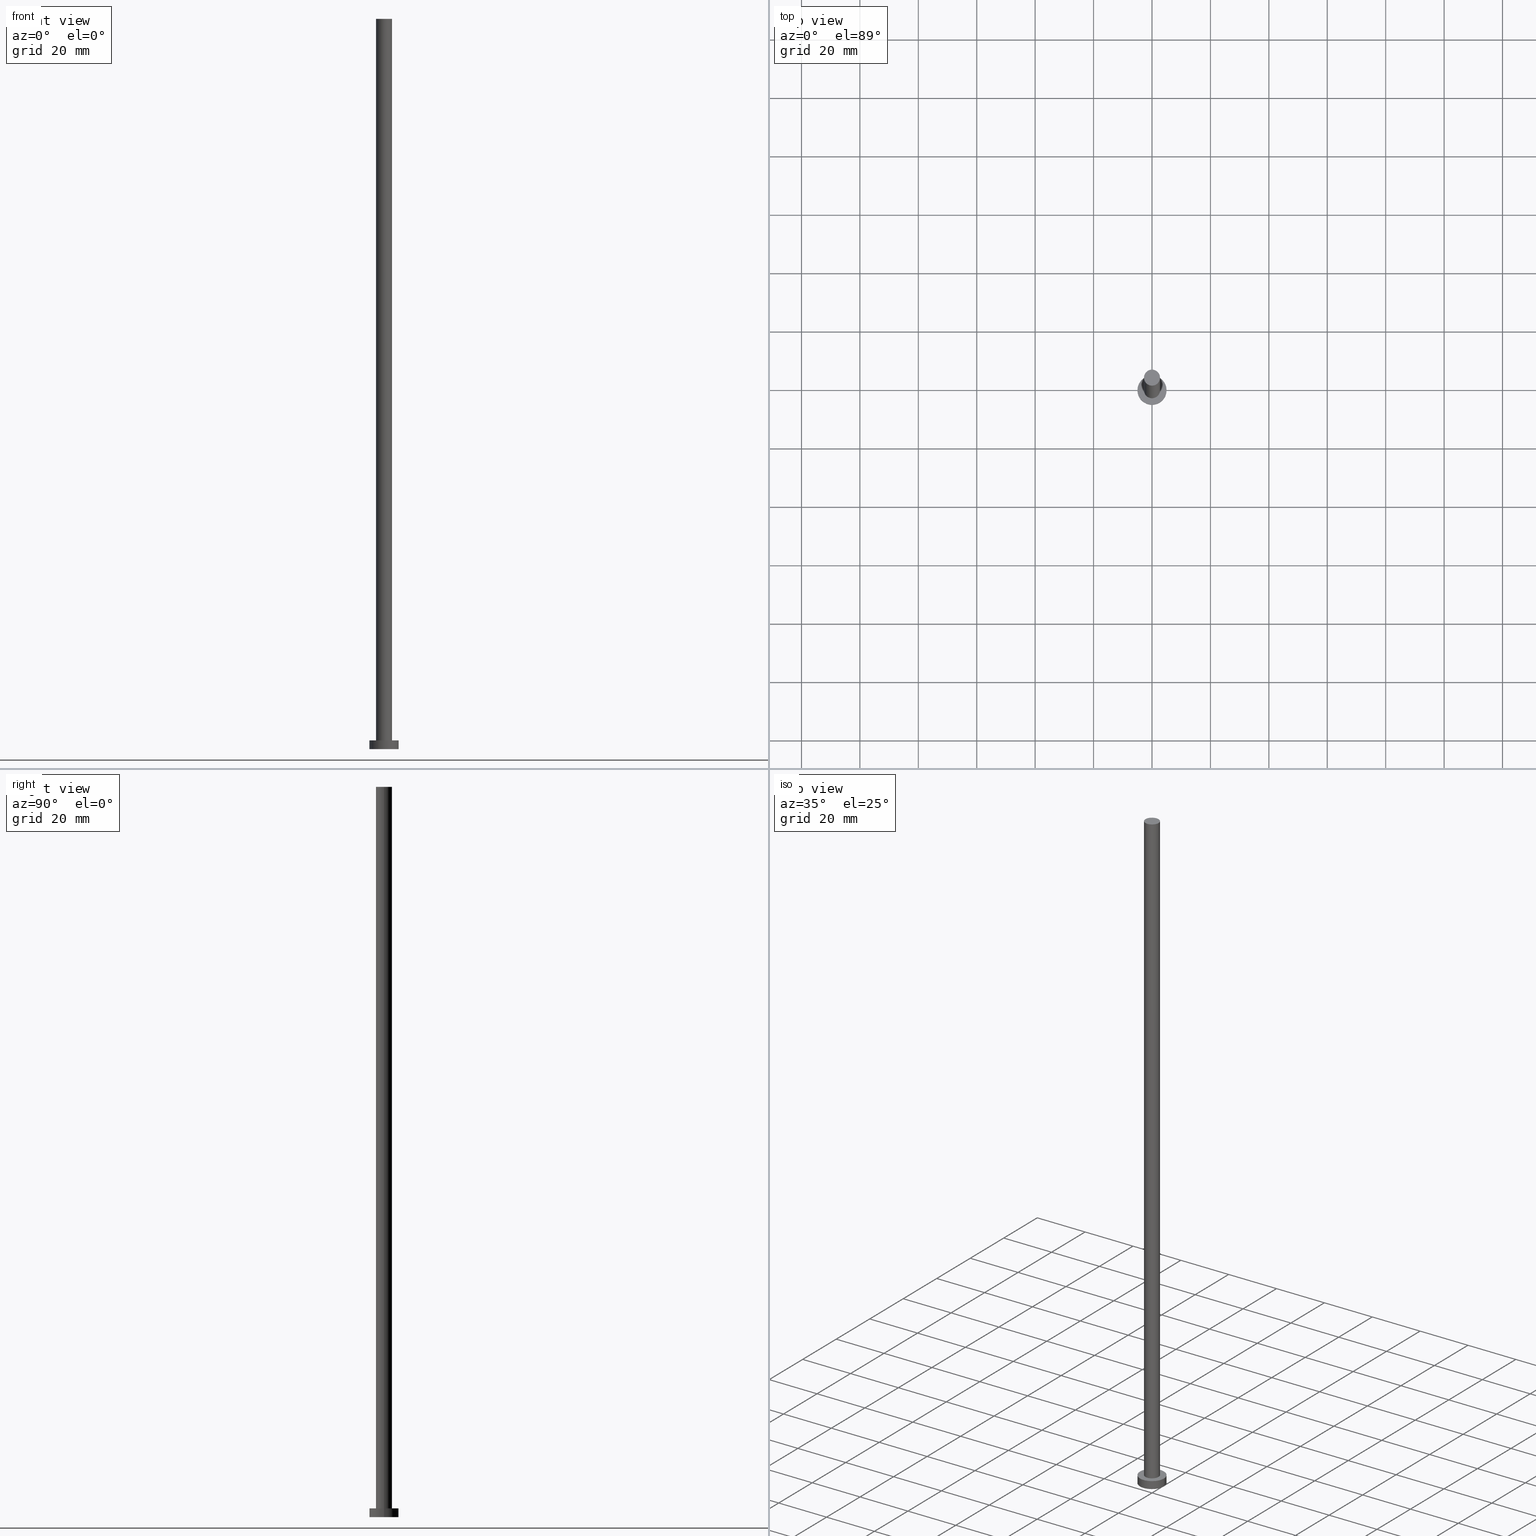
[diagram: canonical four-view strip — front | top / right | iso, engineering-drawing reading convention]
A machine part, canonical four-view strip (front | top / right | iso — engineering-drawing reading convention). The complete STEP part file that produces these views, byte-faithful:
ISO-10303-21;
HEADER;
FILE_DESCRIPTION (( 'STEP AP203' ),
    '1' );
FILE_NAME ('b4a0.STEP',
    '2023-02-13T14:33:39',
    ( '' ),
    ( '' ),
    'SwSTEP 2.0',
    'SolidWorks 2019',
    '' );
FILE_SCHEMA (( 'CONFIG_CONTROL_DESIGN' ));
ENDSEC;

DATA;
#1 = AXIS2_PLACEMENT_3D ( 'NONE', #87, #66, #124 ) ;
#2 = PRODUCT_DEFINITION_SHAPE ( 'NONE', 'NONE',  #73 ) ;
#3 = ADVANCED_FACE ( 'NONE', ( #222 ), #41, .T. ) ;
#4 = ORIENTED_EDGE ( 'NONE', *, *, #113, .T. ) ;
#5 = ORIENTED_EDGE ( 'NONE', *, *, #44, .F. ) ;
#6 = DIRECTION ( 'NONE',  ( -0.000000000000000000, -0.000000000000000000, -1.000000000000000000 ) ) ;
#7 = CARTESIAN_POINT ( 'NONE',  ( 2.750000000000000000, 3.367778697655221012E-16, 250.0000000000000000 ) ) ;
#8 = EDGE_LOOP ( 'NONE', ( #107, #5 ) ) ;
#9 = PERSON_AND_ORGANIZATION_ROLE ( 'creator' ) ;
#10 = DIRECTION ( 'NONE',  ( 0.000000000000000000, 0.000000000000000000, 1.000000000000000000 ) ) ;
#11 = APPROVAL ( #32, 'NEUR�EN�' ) ;
#12 = PERSON_AND_ORGANIZATION_ROLE ( 'design_supplier' ) ;
#13 = CC_DESIGN_APPROVAL ( #160, ( #73 ) ) ;
#14 = DATE_AND_TIME ( #36, #119 ) ;
#15 = AXIS2_PLACEMENT_3D ( 'NONE', #101, #205, #28 ) ;
#16 = APPROVAL_PERSON_ORGANIZATION ( #239, #238, #94 ) ;
#17 = CIRCLE ( 'NONE', #15, 5.000000000000000000 ) ;
#18 = CC_DESIGN_DATE_AND_TIME_ASSIGNMENT ( #14, #49, ( #68 ) ) ;
#19 = AXIS2_PLACEMENT_3D ( 'NONE', #115, #157, #178 ) ;
#20 = DIRECTION ( 'NONE',  ( 0.000000000000000000, 0.000000000000000000, 1.000000000000000000 ) ) ;
#21 = ORIENTED_EDGE ( 'NONE', *, *, #235, .T. ) ;
#22 = EDGE_CURVE ( 'NONE', #111, #88, #135, .T. ) ;
#23 = CYLINDRICAL_SURFACE ( 'NONE', #192, 2.750000000000000000 ) ;
#24 = FACE_BOUND ( 'NONE', #91, .T. ) ;
#25 = VECTOR ( 'NONE', #86, 1000.000000000000000 ) ;
#26 = EDGE_LOOP ( 'NONE', ( #4, #202 ) ) ;
#27 = PERSON_AND_ORGANIZATION_ROLE ( 'design_owner' ) ;
#28 = DIRECTION ( 'NONE',  ( 1.000000000000000000, 0.000000000000000000, 0.000000000000000000 ) ) ;
#29 = DIRECTION ( 'NONE',  ( 0.000000000000000000, 0.000000000000000000, 1.000000000000000000 ) ) ;
#30 = AXIS2_PLACEMENT_3D ( 'NONE', #151, #92, #240 ) ;
#31 = CC_DESIGN_SECURITY_CLASSIFICATION ( #68, ( #142 ) ) ;
#32 = APPROVAL_STATUS ( 'not_yet_approved' ) ;
#33 = PLANE ( 'NONE',  #181 ) ;
#34 = COORDINATED_UNIVERSAL_TIME_OFFSET ( 1, 0, .AHEAD. ) ;
#35 = DIRECTION ( 'NONE',  ( 1.000000000000000000, 0.000000000000000000, 0.000000000000000000 ) ) ;
#36 = CALENDAR_DATE ( 2023, 13, 2 ) ;
#37 = AXIS2_PLACEMENT_3D ( 'NONE', #129, #6, #230 ) ;
#38 = CARTESIAN_POINT ( 'NONE',  ( 5.000000000000000000, 6.123233995736766282E-16, 3.000000000000000000 ) ) ;
#39 = FACE_OUTER_BOUND ( 'NONE', #8, .T. ) ;
#40 = AXIS2_PLACEMENT_3D ( 'NONE', #80, #158, #35 ) ;
#41 = CYLINDRICAL_SURFACE ( 'NONE', #45, 2.750000000000000000 ) ;
#42 = FACE_OUTER_BOUND ( 'NONE', #46, .T. ) ;
#43 = CARTESIAN_POINT ( 'NONE',  ( 5.000000000000000000, 6.123233995736766282E-16, 0.000000000000000000 ) ) ;
#44 = EDGE_CURVE ( 'NONE', #170, #208, #17, .T. ) ;
#45 = AXIS2_PLACEMENT_3D ( 'NONE', #131, #209, #165 ) ;
#46 = EDGE_LOOP ( 'NONE', ( #184, #103, #64, #166 ) ) ;
#47 = CARTESIAN_POINT ( 'NONE',  ( 2.750000000000000000, 3.367778697655221012E-16, 250.0000000000000000 ) ) ;
#48 = ORIENTED_EDGE ( 'NONE', *, *, #130, .F. ) ;
#49 = DATE_TIME_ROLE ( 'classification_date' ) ;
#50 = CIRCLE ( 'NONE', #152, 2.750000000000000000 ) ;
#51 = SHAPE_DEFINITION_REPRESENTATION ( #2, #132 ) ;
#52 = FACE_OUTER_BOUND ( 'NONE', #26, .T. ) ;
#53 = DATE_AND_TIME ( #218, #84 ) ;
#54 = DIRECTION ( 'NONE',  ( -1.000000000000000000, 0.000000000000000000, 0.000000000000000000 ) ) ;
#55 = CIRCLE ( 'NONE', #229, 5.000000000000000000 ) ;
#56 = ADVANCED_FACE ( 'NONE', ( #164 ), #109, .T. ) ;
#57 = CC_DESIGN_APPROVAL ( #238, ( #68 ) ) ;
#58 =( LENGTH_UNIT ( ) NAMED_UNIT ( * ) SI_UNIT ( .MILLI., .METRE. ) );
#59 = LINE ( 'NONE', #217, #182 ) ;
#60 = EDGE_LOOP ( 'NONE', ( #150, #245, #21, #201 ) ) ;
#61 = APPROVAL_STATUS ( 'not_yet_approved' ) ;
#62 = LINE ( 'NONE', #7, #203 ) ;
#63 = CC_DESIGN_DATE_AND_TIME_ASSIGNMENT ( #196, #211, ( #73 ) ) ;
#64 = ORIENTED_EDGE ( 'NONE', *, *, #130, .T. ) ;
#65 = CARTESIAN_POINT ( 'NONE',  ( 0.000000000000000000, 0.000000000000000000, 3.000000000000000000 ) ) ;
#66 = DIRECTION ( 'NONE',  ( 0.000000000000000000, 0.000000000000000000, 1.000000000000000000 ) ) ;
#67 = VERTEX_POINT ( 'NONE', #47 ) ;
#68 = SECURITY_CLASSIFICATION ( '', '', #74 ) ;
#69 = COORDINATED_UNIVERSAL_TIME_OFFSET ( 1, 0, .AHEAD. ) ;
#70 = EDGE_LOOP ( 'NONE', ( #85, #144, #186, #180 ) ) ;
#71 = CARTESIAN_POINT ( 'NONE',  ( -2.750000000000000000, 0.000000000000000000, 250.0000000000000000 ) ) ;
#72 = CIRCLE ( 'NONE', #102, 5.000000000000000000 ) ;
#73 = PRODUCT_DEFINITION ( 'NEZN�M�', '', #142, #162 ) ;
#74 = SECURITY_CLASSIFICATION_LEVEL ( 'unclassified' ) ;
#75 = DIRECTION ( 'NONE',  ( 1.000000000000000000, 0.000000000000000000, -0.000000000000000000 ) ) ;
#76 = DIRECTION ( 'NONE',  ( 0.000000000000000000, 0.000000000000000000, 1.000000000000000000 ) ) ;
#77 = CC_DESIGN_PERSON_AND_ORGANIZATION_ASSIGNMENT ( #156, #233, ( #68 ) ) ;
#78 = EDGE_CURVE ( 'NONE', #67, #111, #62, .T. ) ;
#79 = PLANE ( 'NONE',  #221 ) ;
#80 = CARTESIAN_POINT ( 'NONE',  ( 0.000000000000000000, 0.000000000000000000, 3.000000000000000000 ) ) ;
#81 = APPROVAL_PERSON_ORGANIZATION ( #248, #11, #255 ) ;
#82 = ADVANCED_FACE ( 'NONE', ( #42 ), #23, .T. ) ;
#83 = ORIENTED_EDGE ( 'NONE', *, *, #242, .F. ) ;
#84 = LOCAL_TIME ( 15, 33, 39.00000000000000000, #34 ) ;
#85 = ORIENTED_EDGE ( 'NONE', *, *, #128, .F. ) ;
#86 = DIRECTION ( 'NONE',  ( -0.000000000000000000, -0.000000000000000000, -1.000000000000000000 ) ) ;
#87 = CARTESIAN_POINT ( 'NONE',  ( 0.000000000000000000, 0.000000000000000000, 0.000000000000000000 ) ) ;
#88 = VERTEX_POINT ( 'NONE', #177 ) ;
#89 = APPROVAL_ROLE ( '' ) ;
#90 = VERTEX_POINT ( 'NONE', #254 ) ;
#91 = EDGE_LOOP ( 'NONE', ( #83, #246 ) ) ;
#92 = DIRECTION ( 'NONE',  ( -0.000000000000000000, -0.000000000000000000, -1.000000000000000000 ) ) ;
#93 = VECTOR ( 'NONE', #153, 1000.000000000000000 ) ;
#94 = APPROVAL_ROLE ( '' ) ;
#95 = CYLINDRICAL_SURFACE ( 'NONE', #30, 5.000000000000000000 ) ;
#96 = DIRECTION ( 'NONE',  ( 0.000000000000000000, 0.000000000000000000, 1.000000000000000000 ) ) ;
#97 =( NAMED_UNIT ( * ) PLANE_ANGLE_UNIT ( ) SI_UNIT ( $, .RADIAN. ) );
#98 = CIRCLE ( 'NONE', #40, 2.750000000000000000 ) ;
#99 = APPROVAL_PERSON_ORGANIZATION ( #231, #160, #89 ) ;
#100 = ADVANCED_FACE ( 'NONE', ( #133 ), #95, .T. ) ;
#101 = CARTESIAN_POINT ( 'NONE',  ( 0.000000000000000000, 0.000000000000000000, 0.000000000000000000 ) ) ;
#102 = AXIS2_PLACEMENT_3D ( 'NONE', #247, #234, #112 ) ;
#103 = ORIENTED_EDGE ( 'NONE', *, *, #113, .F. ) ;
#104 = LOCAL_TIME ( 15, 33, 39.00000000000000000, #195 ) ;
#105 = APPLICATION_CONTEXT ( 'configuration controlled 3d designs of mechanical parts and assemblies' ) ;
#106 = FACE_OUTER_BOUND ( 'NONE', #227, .T. ) ;
#107 = ORIENTED_EDGE ( 'NONE', *, *, #138, .F. ) ;
#108 = APPLICATION_PROTOCOL_DEFINITION ( 'international standard', 'config_control_design', 1994, #213 ) ;
#109 = CYLINDRICAL_SURFACE ( 'NONE', #37, 5.000000000000000000 ) ;
#110 = MECHANICAL_CONTEXT ( 'NONE', #105, 'mechanical' ) ;
#111 = VERTEX_POINT ( 'NONE', #212 ) ;
#112 = DIRECTION ( 'NONE',  ( 1.000000000000000000, 0.000000000000000000, 0.000000000000000000 ) ) ;
#113 = EDGE_CURVE ( 'NONE', #188, #67, #50, .T. ) ;
#114 = CC_DESIGN_PERSON_AND_ORGANIZATION_ASSIGNMENT ( #154, #9, ( #73 ) ) ;
#115 = CARTESIAN_POINT ( 'NONE',  ( 0.000000000000000000, 0.000000000000000000, 3.000000000000000000 ) ) ;
#116 = CC_DESIGN_PERSON_AND_ORGANIZATION_ASSIGNMENT ( #136, #12, ( #142 ) ) ;
#117 = DIRECTION ( 'NONE',  ( 0.000000000000000000, 0.000000000000000000, 1.000000000000000000 ) ) ;
#118 = CARTESIAN_POINT ( 'NONE',  ( -2.750000000000000000, 0.000000000000000000, 250.0000000000000000 ) ) ;
#119 = LOCAL_TIME ( 15, 33, 39.00000000000000000, #250 ) ;
#120 = DIRECTION ( 'NONE',  ( 1.000000000000000000, 0.000000000000000000, 0.000000000000000000 ) ) ;
#121 = ADVANCED_FACE ( 'NONE', ( #52 ), #33, .T. ) ;
#122 = CARTESIAN_POINT ( 'NONE',  ( 0.000000000000000000, 0.000000000000000000, 3.000000000000000000 ) ) ;
#123 = UNCERTAINTY_MEASURE_WITH_UNIT (LENGTH_MEASURE( 1.000000000000000082E-05 ), #58, 'distance_accuracy_value', 'NONE');
#124 = DIRECTION ( 'NONE',  ( 1.000000000000000000, 0.000000000000000000, 0.000000000000000000 ) ) ;
#125 = VERTEX_POINT ( 'NONE', #197 ) ;
#126 = LOCAL_TIME ( 15, 33, 39.00000000000000000, #69 ) ;
#127 = LINE ( 'NONE', #38, #25 ) ;
#128 = EDGE_CURVE ( 'NONE', #125, #90, #72, .T. ) ;
#129 = CARTESIAN_POINT ( 'NONE',  ( 0.000000000000000000, 0.000000000000000000, 3.000000000000000000 ) ) ;
#130 = EDGE_CURVE ( 'NONE', #188, #88, #249, .T. ) ;
#131 = CARTESIAN_POINT ( 'NONE',  ( 0.000000000000000000, 0.000000000000000000, 250.0000000000000000 ) ) ;
#132 = ADVANCED_BREP_SHAPE_REPRESENTATION ( 'b4a0', ( #199, #1 ), #243 ) ;
#133 = FACE_OUTER_BOUND ( 'NONE', #70, .T. ) ;
#134 = PERSON_AND_ORGANIZATION_ROLE ( 'creator' ) ;
#135 = CIRCLE ( 'NONE', #172, 2.750000000000000000 ) ;
#136 = PERSON_AND_ORGANIZATION ( #226, #187 ) ;
#137 = CARTESIAN_POINT ( 'NONE',  ( 0.000000000000000000, 0.000000000000000000, 250.0000000000000000 ) ) ;
#138 = EDGE_CURVE ( 'NONE', #208, #170, #55, .T. ) ;
#139 = CARTESIAN_POINT ( 'NONE',  ( 0.000000000000000000, 0.000000000000000000, 0.000000000000000000 ) ) ;
#140 =( NAMED_UNIT ( * ) SI_UNIT ( $, .STERADIAN. ) SOLID_ANGLE_UNIT ( ) );
#141 = ADVANCED_FACE ( 'NONE', ( #39 ), #79, .F. ) ;
#142 = PRODUCT_DEFINITION_FORMATION_WITH_SPECIFIED_SOURCE ( 'LIBOVOLN�', '', #198, .NOT_KNOWN. ) ;
#143 = APPLICATION_PROTOCOL_DEFINITION ( 'international standard', 'config_control_design', 1994, #105 ) ;
#144 = ORIENTED_EDGE ( 'NONE', *, *, #169, .T. ) ;
#145 = CALENDAR_DATE ( 2023, 13, 2 ) ;
#146 = ORIENTED_EDGE ( 'NONE', *, *, #128, .T. ) ;
#147 = DIRECTION ( 'NONE',  ( 1.000000000000000000, 0.000000000000000000, 0.000000000000000000 ) ) ;
#148 = ORIENTED_EDGE ( 'NONE', *, *, #251, .T. ) ;
#149 = APPROVAL_DATE_TIME ( #223, #160 ) ;
#150 = ORIENTED_EDGE ( 'NONE', *, *, #169, .F. ) ;
#151 = CARTESIAN_POINT ( 'NONE',  ( 0.000000000000000000, 0.000000000000000000, 3.000000000000000000 ) ) ;
#152 = AXIS2_PLACEMENT_3D ( 'NONE', #252, #96, #171 ) ;
#153 = DIRECTION ( 'NONE',  ( -0.000000000000000000, -0.000000000000000000, -1.000000000000000000 ) ) ;
#154 = PERSON_AND_ORGANIZATION ( #226, #187 ) ;
#155 = DIRECTION ( 'NONE',  ( 1.000000000000000000, 0.000000000000000000, -0.000000000000000000 ) ) ;
#156 = PERSON_AND_ORGANIZATION ( #226, #187 ) ;
#157 = DIRECTION ( 'NONE',  ( 0.000000000000000000, 0.000000000000000000, 1.000000000000000000 ) ) ;
#158 = DIRECTION ( 'NONE',  ( 0.000000000000000000, 0.000000000000000000, 1.000000000000000000 ) ) ;
#159 = DIRECTION ( 'NONE',  ( 0.000000000000000000, 0.000000000000000000, 1.000000000000000000 ) ) ;
#160 = APPROVAL ( #61, 'NEUR�EN�' ) ;
#161 = CIRCLE ( 'NONE', #19, 5.000000000000000000 ) ;
#162 = DESIGN_CONTEXT ( 'detailed design', #213, 'design' ) ;
#163 = DIRECTION ( 'NONE',  ( -0.000000000000000000, -0.000000000000000000, -1.000000000000000000 ) ) ;
#164 = FACE_OUTER_BOUND ( 'NONE', #60, .T. ) ;
#165 = DIRECTION ( 'NONE',  ( -1.000000000000000000, 0.000000000000000000, 0.000000000000000000 ) ) ;
#166 = ORIENTED_EDGE ( 'NONE', *, *, #242, .T. ) ;
#167 = AXIS2_PLACEMENT_3D ( 'NONE', #179, #20, #120 ) ;
#168 = EDGE_LOOP ( 'NONE', ( #232, #244, #183, #48 ) ) ;
#169 = EDGE_CURVE ( 'NONE', #125, #170, #127, .T. ) ;
#170 = VERTEX_POINT ( 'NONE', #43 ) ;
#171 = DIRECTION ( 'NONE',  ( 1.000000000000000000, 0.000000000000000000, 0.000000000000000000 ) ) ;
#172 = AXIS2_PLACEMENT_3D ( 'NONE', #122, #29, #147 ) ;
#173 = APPROVAL_DATE_TIME ( #176, #11 ) ;
#174 = LOCAL_TIME ( 15, 33, 39.00000000000000000, #236 ) ;
#175 = APPROVAL_DATE_TIME ( #53, #238 ) ;
#176 = DATE_AND_TIME ( #190, #174 ) ;
#177 = CARTESIAN_POINT ( 'NONE',  ( -2.750000000000000000, 0.000000000000000000, 3.000000000000000000 ) ) ;
#178 = DIRECTION ( 'NONE',  ( 1.000000000000000000, 0.000000000000000000, 0.000000000000000000 ) ) ;
#179 = CARTESIAN_POINT ( 'NONE',  ( 0.000000000000000000, 0.000000000000000000, 250.0000000000000000 ) ) ;
#180 = ORIENTED_EDGE ( 'NONE', *, *, #235, .F. ) ;
#181 = AXIS2_PLACEMENT_3D ( 'NONE', #189, #117, #75 ) ;
#182 = VECTOR ( 'NONE', #163, 1000.000000000000000 ) ;
#183 = ORIENTED_EDGE ( 'NONE', *, *, #22, .T. ) ;
#184 = ORIENTED_EDGE ( 'NONE', *, *, #78, .F. ) ;
#185 = PRODUCT_RELATED_PRODUCT_CATEGORY ( 'detail', '', ( #198 ) ) ;
#186 = ORIENTED_EDGE ( 'NONE', *, *, #44, .T. ) ;
#187 = ORGANIZATION ( 'NEUR�EN�', 'NEUR�EN�', '' ) ;
#188 = VERTEX_POINT ( 'NONE', #118 ) ;
#189 = CARTESIAN_POINT ( 'NONE',  ( 0.000000000000000000, 0.000000000000000000, 250.0000000000000000 ) ) ;
#190 = CALENDAR_DATE ( 2023, 13, 2 ) ;
#191 = CARTESIAN_POINT ( 'NONE',  ( 0.000000000000000000, 0.000000000000000000, 0.000000000000000000 ) ) ;
#192 = AXIS2_PLACEMENT_3D ( 'NONE', #137, #216, #54 ) ;
#193 = PERSON_AND_ORGANIZATION ( #226, #187 ) ;
#194 = CIRCLE ( 'NONE', #167, 2.750000000000000000 ) ;
#195 = COORDINATED_UNIVERSAL_TIME_OFFSET ( 1, 0, .AHEAD. ) ;
#196 = DATE_AND_TIME ( #215, #104 ) ;
#197 = CARTESIAN_POINT ( 'NONE',  ( 5.000000000000000000, 6.123233995736766282E-16, 3.000000000000000000 ) ) ;
#198 = PRODUCT ( 'b4a0', 'b4a0', '', ( #110 ) ) ;
#199 = MANIFOLD_SOLID_BREP ( 'P�idat vysunut�m3', #214 ) ;
#200 = ADVANCED_FACE ( 'NONE', ( #24, #106 ), #228, .T. ) ;
#201 = ORIENTED_EDGE ( 'NONE', *, *, #138, .T. ) ;
#202 = ORIENTED_EDGE ( 'NONE', *, *, #219, .T. ) ;
#203 = VECTOR ( 'NONE', #224, 1000.000000000000000 ) ;
#204 = CC_DESIGN_PERSON_AND_ORGANIZATION_ASSIGNMENT ( #207, #27, ( #198 ) ) ;
#205 = DIRECTION ( 'NONE',  ( 0.000000000000000000, 0.000000000000000000, 1.000000000000000000 ) ) ;
#206 = CC_DESIGN_PERSON_AND_ORGANIZATION_ASSIGNMENT ( #193, #134, ( #142 ) ) ;
#207 = PERSON_AND_ORGANIZATION ( #226, #187 ) ;
#208 = VERTEX_POINT ( 'NONE', #253 ) ;
#209 = DIRECTION ( 'NONE',  ( -0.000000000000000000, -0.000000000000000000, -1.000000000000000000 ) ) ;
#210 = APPROVAL_STATUS ( 'not_yet_approved' ) ;
#211 = DATE_TIME_ROLE ( 'creation_date' ) ;
#212 = CARTESIAN_POINT ( 'NONE',  ( 2.750000000000000000, 3.367778697655221012E-16, 3.000000000000000000 ) ) ;
#213 = APPLICATION_CONTEXT ( 'configuration controlled 3d designs of mechanical parts and assemblies' ) ;
#214 = CLOSED_SHELL ( 'NONE', ( #3, #100, #56, #200, #141, #82, #121 ) ) ;
#215 = CALENDAR_DATE ( 2023, 13, 2 ) ;
#216 = DIRECTION ( 'NONE',  ( -0.000000000000000000, -0.000000000000000000, -1.000000000000000000 ) ) ;
#217 = CARTESIAN_POINT ( 'NONE',  ( -5.000000000000000000, 0.000000000000000000, 3.000000000000000000 ) ) ;
#218 = CALENDAR_DATE ( 2023, 13, 2 ) ;
#219 = EDGE_CURVE ( 'NONE', #67, #188, #194, .T. ) ;
#220 = CC_DESIGN_APPROVAL ( #11, ( #142 ) ) ;
#221 = AXIS2_PLACEMENT_3D ( 'NONE', #139, #159, #225 ) ;
#222 = FACE_OUTER_BOUND ( 'NONE', #168, .T. ) ;
#223 = DATE_AND_TIME ( #145, #126 ) ;
#224 = DIRECTION ( 'NONE',  ( -0.000000000000000000, -0.000000000000000000, -1.000000000000000000 ) ) ;
#225 = DIRECTION ( 'NONE',  ( 1.000000000000000000, 0.000000000000000000, -0.000000000000000000 ) ) ;
#226 = PERSON ( 'NEUR�EN�', 'NEUR�EN�', 'NEUR�EN�', ('NEUR�EN�'), ('NEUR�EN�'), ('NEUR�EN�') ) ;
#227 = EDGE_LOOP ( 'NONE', ( #148, #146 ) ) ;
#228 = PLANE ( 'NONE',  #241 ) ;
#229 = AXIS2_PLACEMENT_3D ( 'NONE', #191, #10, #237 ) ;
#230 = DIRECTION ( 'NONE',  ( -1.000000000000000000, 0.000000000000000000, 0.000000000000000000 ) ) ;
#231 = PERSON_AND_ORGANIZATION ( #226, #187 ) ;
#232 = ORIENTED_EDGE ( 'NONE', *, *, #219, .F. ) ;
#233 = PERSON_AND_ORGANIZATION_ROLE ( 'classification_officer' ) ;
#234 = DIRECTION ( 'NONE',  ( 0.000000000000000000, 0.000000000000000000, 1.000000000000000000 ) ) ;
#235 = EDGE_CURVE ( 'NONE', #90, #208, #59, .T. ) ;
#236 = COORDINATED_UNIVERSAL_TIME_OFFSET ( 1, 0, .AHEAD. ) ;
#237 = DIRECTION ( 'NONE',  ( 1.000000000000000000, 0.000000000000000000, 0.000000000000000000 ) ) ;
#238 = APPROVAL ( #210, 'NEUR�EN�' ) ;
#239 = PERSON_AND_ORGANIZATION ( #226, #187 ) ;
#240 = DIRECTION ( 'NONE',  ( -1.000000000000000000, 0.000000000000000000, 0.000000000000000000 ) ) ;
#241 = AXIS2_PLACEMENT_3D ( 'NONE', #65, #76, #155 ) ;
#242 = EDGE_CURVE ( 'NONE', #88, #111, #98, .T. ) ;
#243 =( GEOMETRIC_REPRESENTATION_CONTEXT ( 3 ) GLOBAL_UNCERTAINTY_ASSIGNED_CONTEXT ( ( #123 ) ) GLOBAL_UNIT_ASSIGNED_CONTEXT ( ( #58, #97, #140 ) ) REPRESENTATION_CONTEXT ( 'NONE', 'WORKASPACE' ) );
#244 = ORIENTED_EDGE ( 'NONE', *, *, #78, .T. ) ;
#245 = ORIENTED_EDGE ( 'NONE', *, *, #251, .F. ) ;
#246 = ORIENTED_EDGE ( 'NONE', *, *, #22, .F. ) ;
#247 = CARTESIAN_POINT ( 'NONE',  ( 0.000000000000000000, 0.000000000000000000, 3.000000000000000000 ) ) ;
#248 = PERSON_AND_ORGANIZATION ( #226, #187 ) ;
#249 = LINE ( 'NONE', #71, #93 ) ;
#250 = COORDINATED_UNIVERSAL_TIME_OFFSET ( 1, 0, .AHEAD. ) ;
#251 = EDGE_CURVE ( 'NONE', #90, #125, #161, .T. ) ;
#252 = CARTESIAN_POINT ( 'NONE',  ( 0.000000000000000000, 0.000000000000000000, 250.0000000000000000 ) ) ;
#253 = CARTESIAN_POINT ( 'NONE',  ( -5.000000000000000000, 0.000000000000000000, 0.000000000000000000 ) ) ;
#254 = CARTESIAN_POINT ( 'NONE',  ( -5.000000000000000000, 0.000000000000000000, 3.000000000000000000 ) ) ;
#255 = APPROVAL_ROLE ( '' ) ;
ENDSEC;
END-ISO-10303-21;
